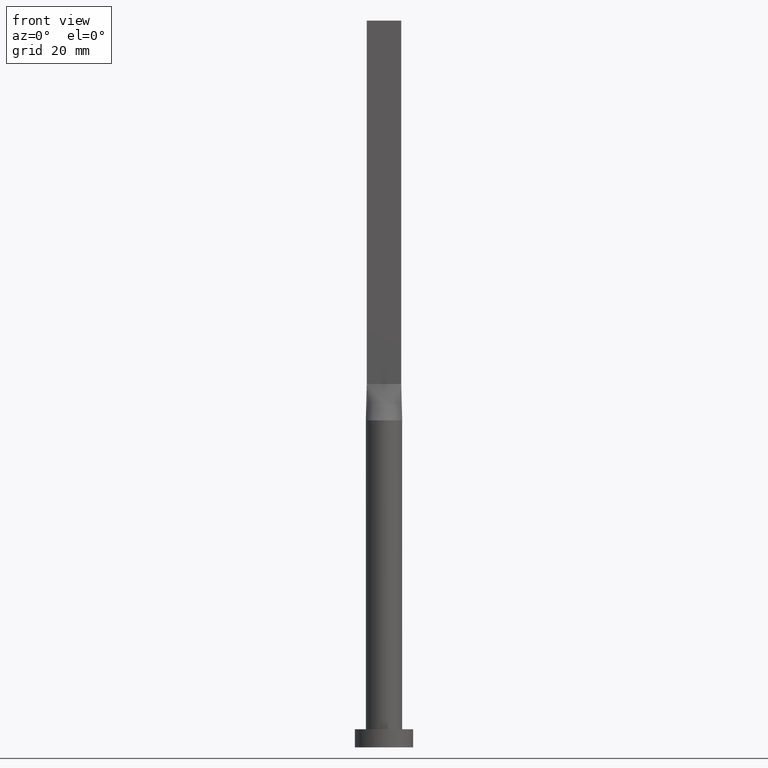
[diagram: clean part render]
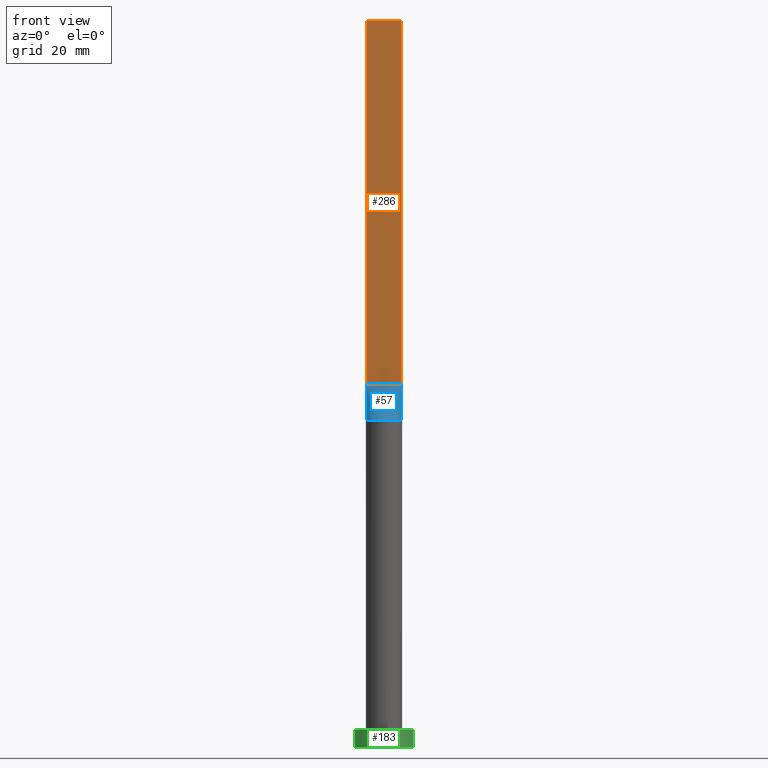
[diagram: same view with three faces highlighted in distinct colors, each labeled with its STEP entity id]
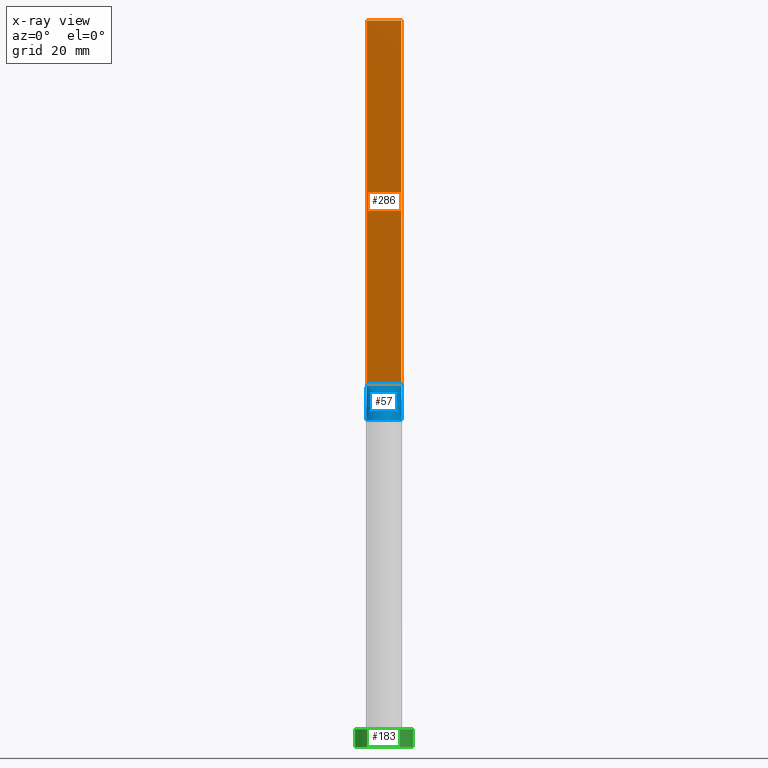
[diagram: x-ray of the same camera — body ghosted, the three highlighted faces saturated]
A machine part, front view with three faces highlighted in distinct colors.
The next image is the same camera in x-ray (body ghosted, the three faces saturated) — at least one of them is partly hidden behind the body in this view.
Their STEP definitions:

[orange] entity #286 — the highlighted planar face has unit normal (0, 1, -0).
#3 = VERTEX_POINT ( 'NONE', #250 ) ;
#19 = LINE ( 'NONE', #513, #455 ) ;
#32 = ORIENTED_EDGE ( 'NONE', *, *, #351, .F. ) ;
#39 = EDGE_CURVE ( 'NONE', #3, #116, #358, .T. ) ;
#49 = DIRECTION ( 'NONE',  ( -0.000000000000000000, -0.000000000000000000, -1.000000000000000000 ) ) ;
#91 = ORIENTED_EDGE ( 'NONE', *, *, #39, .T. ) ;
#100 = CARTESIAN_POINT ( 'NONE',  ( -4.750000000000000000, -0.9999999999999991118, 200.0000000000000000 ) ) ;
#110 = DIRECTION ( 'NONE',  ( -0.000000000000000000, -0.000000000000000000, -1.000000000000000000 ) ) ;
#116 = VERTEX_POINT ( 'NONE', #217 ) ;
#136 = VERTEX_POINT ( 'NONE', #167 ) ;
#156 = DIRECTION ( 'NONE',  ( 1.000000000000000000, -6.847592668329501559E-17, 0.000000000000000000 ) ) ;
#166 = FACE_OUTER_BOUND ( 'NONE', #294, .T. ) ;
#167 = CARTESIAN_POINT ( 'NONE',  ( -4.750000000000000000, -0.9999999999999991118, 200.0000000000000000 ) ) ;
#169 = CARTESIAN_POINT ( 'NONE',  ( -4.750000000000000000, -0.9999999999999991118, 200.0000000000000000 ) ) ;
#179 = ORIENTED_EDGE ( 'NONE', *, *, #505, .T. ) ;
#217 = CARTESIAN_POINT ( 'NONE',  ( 4.750000000000000000, -0.9999999999999997780, 100.0000000000000000 ) ) ;
#221 = VECTOR ( 'NONE', #110, 1000.000000000000000 ) ;
#250 = CARTESIAN_POINT ( 'NONE',  ( -4.750000000000000000, -0.9999999999999991118, 100.0000000000000000 ) ) ;
#260 = DIRECTION ( 'NONE',  ( -1.000000000000000000, 6.847592668329501559E-17, 0.000000000000000000 ) ) ;
#272 = VECTOR ( 'NONE', #311, 1000.000000000000000 ) ;
#286 = ADVANCED_FACE ( 'NONE', ( #166 ), #589, .F. ) ;
#294 = EDGE_LOOP ( 'NONE', ( #91, #32, #385, #179 ) ) ;
#309 = DIRECTION ( 'NONE',  ( 6.847592668329501559E-17, 1.000000000000000000, -0.000000000000000000 ) ) ;
#311 = DIRECTION ( 'NONE',  ( 1.000000000000000000, -6.847592668329501559E-17, 0.000000000000000000 ) ) ;
#341 = CARTESIAN_POINT ( 'NONE',  ( -4.750000000000000000, -0.9999999999999991118, 200.0000000000000000 ) ) ;
#351 = EDGE_CURVE ( 'NONE', #597, #116, #19, .T. ) ;
#358 = LINE ( 'NONE', #547, #272 ) ;
#360 = CARTESIAN_POINT ( 'NONE',  ( 4.750000000000000000, -0.9999999999999997780, 200.0000000000000000 ) ) ;
#361 = AXIS2_PLACEMENT_3D ( 'NONE', #169, #309, #260 ) ;
#385 = ORIENTED_EDGE ( 'NONE', *, *, #481, .F. ) ;
#443 = LINE ( 'NONE', #341, #221 ) ;
#445 = VECTOR ( 'NONE', #156, 1000.000000000000000 ) ;
#455 = VECTOR ( 'NONE', #49, 1000.000000000000000 ) ;
#481 = EDGE_CURVE ( 'NONE', #136, #597, #490, .T. ) ;
#490 = LINE ( 'NONE', #100, #445 ) ;
#505 = EDGE_CURVE ( 'NONE', #136, #3, #443, .T. ) ;
#513 = CARTESIAN_POINT ( 'NONE',  ( 4.750000000000000000, -0.9999999999999997780, 200.0000000000000000 ) ) ;
#547 = CARTESIAN_POINT ( 'NONE',  ( -4.750000000000000000, -0.9999999999999991118, 100.0000000000000000 ) ) ;
#589 = PLANE ( 'NONE',  #361 ) ;
#597 = VERTEX_POINT ( 'NONE', #360 ) ;

[blue] entity #57 — the highlighted face is a freeform B-spline surface patch.
#1 = CARTESIAN_POINT ( 'NONE',  ( -0.9895833333333223791, -0.9999999999999991118, 100.0000000000000000 ) ) ;
#3 = VERTEX_POINT ( 'NONE', #250 ) ;
#4 = AXIS2_PLACEMENT_3D ( 'NONE', #117, #489, #70 ) ;
#12 = CARTESIAN_POINT ( 'NONE',  ( 0.7916666666666767327, -0.9999999999999995559, 100.0000000000000000 ) ) ;
#35 = ORIENTED_EDGE ( 'NONE', *, *, #39, .F. ) ;
#39 = EDGE_CURVE ( 'NONE', #3, #116, #358, .T. ) ;
#44 = CARTESIAN_POINT ( 'NONE',  ( -0.6760916456145810161, -4.965368365385190330, 90.00000000000002842 ) ) ;
#48 = CARTESIAN_POINT ( 'NONE',  ( -3.900093280396790263, -3.182195704254722646, 90.00000000000002842 ) ) ;
#51 = CARTESIAN_POINT ( 'NONE',  ( -0.3958333333333227677, -0.9999999999999991118, 100.0000000000000000 ) ) ;
#53 = CARTESIAN_POINT ( 'NONE',  ( -1.979166666666656749, -0.9999999999999991118, 100.0000000000000000 ) ) ;
#57 = ADVANCED_FACE ( 'NONE', ( #566 ), #465, .T. ) ;
#62 = LINE ( 'NONE', #248, #242 ) ;
#70 = DIRECTION ( 'NONE',  ( 1.000000000000000000, 0.000000000000000000, 0.000000000000000000 ) ) ;
#85 = CARTESIAN_POINT ( 'NONE',  ( -4.750000000000000000, -0.9999999999999991118, 100.0000000000000000 ) ) ;
#89 = CARTESIAN_POINT ( 'NONE',  ( -4.214142381859629971, -2.735777372109855499, 90.00000000000005684 ) ) ;
#93 = CARTESIAN_POINT ( 'NONE',  ( -3.166666666666660301, -0.9999999999999991118, 100.0000000000000142 ) ) ;
#101 = CARTESIAN_POINT ( 'NONE',  ( 2.546422404201595491, -4.351724242187078318, 90.00000000000004263 ) ) ;
#109 = VECTOR ( 'NONE', #402, 999.9999999999998863 ) ;
#116 = VERTEX_POINT ( 'NONE', #217 ) ;
#117 = CARTESIAN_POINT ( 'NONE',  ( 0.000000000000000000, 0.000000000000000000, 90.00000000000001421 ) ) ;
#119 = CARTESIAN_POINT ( 'NONE',  ( 0.3958333333333435289, -0.9999999999999993339, 100.0000000000000142 ) ) ;
#153 = CARTESIAN_POINT ( 'NONE',  ( 3.900093280396789819, -3.182195704254725754, 90.00000000000002842 ) ) ;
#160 = LINE ( 'NONE', #201, #109 ) ;
#182 = CARTESIAN_POINT ( 'NONE',  ( -0.1979166666666562768, -0.9999999999999993339, 100.0000000000000142 ) ) ;
#185 = ORIENTED_EDGE ( 'NONE', *, *, #215, .T. ) ;
#195 = CARTESIAN_POINT ( 'NONE',  ( 0.9895833333333431403, -0.9999999999999995559, 100.0000000000000142 ) ) ;
#201 = CARTESIAN_POINT ( 'NONE',  ( 4.821374462466871513, -1.015026202624605967, 95.00000000000000000 ) ) ;
#215 = EDGE_CURVE ( 'NONE', #466, #453, #276, .T. ) ;
#217 = CARTESIAN_POINT ( 'NONE',  ( 4.750000000000000000, -0.9999999999999997780, 100.0000000000000000 ) ) ;
#226 = CARTESIAN_POINT ( 'NONE',  ( 0.3380808736611294329, -5.000000000000000000, 90.00000000000004263 ) ) ;
#228 = ORIENTED_EDGE ( 'NONE', *, *, #438, .T. ) ;
#229 = CARTESIAN_POINT ( 'NONE',  ( -4.667610010780609997, -1.859271532507959845, 90.00000000000004263 ) ) ;
#230 = CARTESIAN_POINT ( 'NONE',  ( 3.166666666666674068, -0.9999999999999995559, 100.0000000000000284 ) ) ;
#231 = CARTESIAN_POINT ( 'NONE',  ( -0.3380808736611334853, -5.000000000000000000, 90.00000000000004263 ) ) ;
#235 = CARTESIAN_POINT ( 'NONE',  ( -1.583333333333322823, -0.9999999999999991118, 100.0000000000000000 ) ) ;
#239 = CARTESIAN_POINT ( 'NONE',  ( 2.770833333333341475, -0.9999999999999995559, 100.0000000000000284 ) ) ;
#242 = VECTOR ( 'NONE', #337, 999.9999999999998863 ) ;
#248 = CARTESIAN_POINT ( 'NONE',  ( -4.821374462466872401, -1.015026202624603524, 95.00000000000000000 ) ) ;
#250 = CARTESIAN_POINT ( 'NONE',  ( -4.750000000000000000, -0.9999999999999991118, 100.0000000000000000 ) ) ;
#272 = VECTOR ( 'NONE', #311, 1000.000000000000000 ) ;
#276 = CIRCLE ( 'NONE', #4, 5.000000000000000000 ) ;
#278 = CARTESIAN_POINT ( 'NONE',  ( -4.808752461626938590, -1.429035605956546329, 90.00000000000004263 ) ) ;
#279 = EDGE_CURVE ( 'NONE', #453, #116, #160, .T. ) ;
#285 = CARTESIAN_POINT ( 'NONE',  ( 4.667610010780611773, -1.859271532507964286, 90.00000000000007105 ) ) ;
#287 = CARTESIAN_POINT ( 'NONE',  ( -0.7916666666666558605, -0.9999999999999991118, 100.0000000000000000 ) ) ;
#288 = CARTESIAN_POINT ( 'NONE',  ( -2.546422404201599488, -4.351724242187074765, 90.00000000000002842 ) ) ;
#291 = CARTESIAN_POINT ( 'NONE',  ( -3.958333333333330373, -0.9999999999999991118, 100.0000000000000142 ) ) ;
#293 = CARTESIAN_POINT ( 'NONE',  ( 1.979166666666675845, -0.9999999999999995559, 100.0000000000000284 ) ) ;
#303 = CARTESIAN_POINT ( 'NONE',  ( 1.583333333333342585, -0.9999999999999995559, 100.0000000000000142 ) ) ;
#311 = DIRECTION ( 'NONE',  ( 1.000000000000000000, -6.847592668329501559E-17, 0.000000000000000000 ) ) ;
#325 = CARTESIAN_POINT ( 'NONE',  ( 4.892748924933744803, -1.030052405249212155, 90.00000000000001421 ) ) ;
#327 = CARTESIAN_POINT ( 'NONE',  ( -4.892748924933745691, -1.030052405249207936, 90.00000000000001421 ) ) ;
#331 = CARTESIAN_POINT ( 'NONE',  ( -2.770833333333325488, -0.9999999999999991118, 100.0000000000000000 ) ) ;
#337 = DIRECTION ( 'NONE',  ( -0.01427337385845013802, -0.003004920812305207807, -0.9998936149659166661 ) ) ;
#338 = CARTESIAN_POINT ( 'NONE',  ( 1.649264041307592965, -4.731318088779740805, 90.00000000000001421 ) ) ;
#349 = CARTESIAN_POINT ( 'NONE',  ( 4.214142381859629971, -2.735777372109856831, 90.00000000000000000 ) ) ;
#358 = LINE ( 'NONE', #547, #272 ) ;
#402 = DIRECTION ( 'NONE',  ( -0.01427337385845005129, 0.003004920812305554318, 0.9998936149659166661 ) ) ;
#414 = CARTESIAN_POINT ( 'NONE',  ( 3.958333333333337922, -0.9999999999999995559, 100.0000000000000284 ) ) ;
#423 = CARTESIAN_POINT ( 'NONE',  ( 4.808752461626937702, -1.429035605956550103, 90.00000000000002842 ) ) ;
#426 = CARTESIAN_POINT ( 'NONE',  ( -1.649264041307596962, -4.731318088779738140, 90.00000000000004263 ) ) ;
#436 = CARTESIAN_POINT ( 'NONE',  ( -4.892752739180945554, -1.030053203145257168, 90.00000000000001421 ) ) ;
#437 = CARTESIAN_POINT ( 'NONE',  ( 0.1979166666666768715, -0.9999999999999993339, 100.0000000000000142 ) ) ;
#438 = EDGE_CURVE ( 'NONE', #3, #466, #62, .T. ) ;
#453 = VERTEX_POINT ( 'NONE', #530 ) ;
#465 = B_SPLINE_SURFACE_WITH_KNOTS ( 'NONE', 3, 1, ( 
 ( #327, #85 ),
 ( #278, #563 ),
 ( #229, #291 ),
 ( #89, #93 ),
 ( #48, #331 ),
 ( #519, #53 ),
 ( #288, #235 ),
 ( #426, #1 ),
 ( #559, #287 ),
 ( #44, #51 ),
 ( #231, #182 ),
 ( #226, #437 ),
 ( #524, #119 ),
 ( #483, #12 ),
 ( #338, #195 ),
 ( #101, #303 ),
 ( #575, #293 ),
 ( #153, #239 ),
 ( #349, #230 ),
 ( #285, #414 ),
 ( #423, #600 ),
 ( #325, #467 ) ),
 .UNSPECIFIED., .F., .F., .F.,
 ( 4, 2, 2, 2, 2, 2, 2, 2, 2, 2, 4 ),
 ( 2, 2 ),
 ( 0.000000000000000000, 0.1250000000000000278, 0.2500000000000000555, 0.3750000000000001110, 0.4375000000000000555, 0.5000000000000000000, 0.5625000000000000000, 0.6250000000000000000, 0.7500000000000000000, 0.8750000000000001110, 1.000000000000000000 ),
 ( 0.000000000000000000, 1.000000000000000000 ),
 .UNSPECIFIED. ) ;
#466 = VERTEX_POINT ( 'NONE', #436 ) ;
#467 = CARTESIAN_POINT ( 'NONE',  ( 4.750000000000000000, -0.9999999999999997780, 100.0000000000000000 ) ) ;
#483 = CARTESIAN_POINT ( 'NONE',  ( 1.331739278681917771, -4.830988864699812702, 90.00000000000000000 ) ) ;
#485 = ORIENTED_EDGE ( 'NONE', *, *, #279, .T. ) ;
#489 = DIRECTION ( 'NONE',  ( 0.000000000000000000, 0.000000000000000000, 1.000000000000000000 ) ) ;
#519 = CARTESIAN_POINT ( 'NONE',  ( -3.067114325249250317, -3.991228734590923199, 90.00000000000002842 ) ) ;
#524 = CARTESIAN_POINT ( 'NONE',  ( 0.6760916456145764641, -4.965368365385190330, 90.00000000000002842 ) ) ;
#530 = CARTESIAN_POINT ( 'NONE',  ( 4.892747712986307285, -1.030052143680505683, 90.00000000000001421 ) ) ;
#540 = EDGE_LOOP ( 'NONE', ( #185, #485, #35, #228 ) ) ;
#547 = CARTESIAN_POINT ( 'NONE',  ( -4.750000000000000000, -0.9999999999999991118, 100.0000000000000000 ) ) ;
#559 = CARTESIAN_POINT ( 'NONE',  ( -1.331739278681922656, -4.830988864699811813, 90.00000000000001421 ) ) ;
#563 = CARTESIAN_POINT ( 'NONE',  ( -4.354166666666665186, -0.9999999999999991118, 100.0000000000000142 ) ) ;
#566 = FACE_OUTER_BOUND ( 'NONE', #540, .T. ) ;
#575 = CARTESIAN_POINT ( 'NONE',  ( 3.067114325249245876, -3.991228734590925864, 90.00000000000002842 ) ) ;
#600 = CARTESIAN_POINT ( 'NONE',  ( 4.354166666666669627, -0.9999999999999995559, 100.0000000000000142 ) ) ;

[green] entity #183 — the highlighted cylindrical surface (edge-blend (fillet) strip) has radius 8 mm, axis along (-0, -0, -1).
#17 = EDGE_CURVE ( 'NONE', #411, #415, #75, .T. ) ;
#67 = EDGE_CURVE ( 'NONE', #415, #131, #371, .T. ) ;
#69 = DIRECTION ( 'NONE',  ( 1.000000000000000000, 0.000000000000000000, 0.000000000000000000 ) ) ;
#75 = CIRCLE ( 'NONE', #140, 8.000000000000000000 ) ;
#83 = CARTESIAN_POINT ( 'NONE',  ( 0.000000000000000000, 0.000000000000000000, 0.000000000000000000 ) ) ;
#121 = ORIENTED_EDGE ( 'NONE', *, *, #173, .T. ) ;
#122 = DIRECTION ( 'NONE',  ( 0.000000000000000000, 0.000000000000000000, 1.000000000000000000 ) ) ;
#131 = VERTEX_POINT ( 'NONE', #227 ) ;
#140 = AXIS2_PLACEMENT_3D ( 'NONE', #197, #392, #69 ) ;
#161 = CYLINDRICAL_SURFACE ( 'NONE', #210, 8.000000000000000000 ) ;
#173 = EDGE_CURVE ( 'NONE', #203, #131, #251, .T. ) ;
#183 = ADVANCED_FACE ( 'NONE', ( #582 ), #161, .T. ) ;
#197 = CARTESIAN_POINT ( 'NONE',  ( 0.000000000000000000, 0.000000000000000000, 5.000000000000000000 ) ) ;
#203 = VERTEX_POINT ( 'NONE', #204 ) ;
#204 = CARTESIAN_POINT ( 'NONE',  ( -8.000000000000000000, 0.000000000000000000, 0.000000000000000000 ) ) ;
#210 = AXIS2_PLACEMENT_3D ( 'NONE', #267, #495, #310 ) ;
#212 = DIRECTION ( 'NONE',  ( 1.000000000000000000, 0.000000000000000000, 0.000000000000000000 ) ) ;
#214 = LINE ( 'NONE', #549, #544 ) ;
#227 = CARTESIAN_POINT ( 'NONE',  ( 8.000000000000000000, 9.797174393178825657E-16, 0.000000000000000000 ) ) ;
#251 = CIRCLE ( 'NONE', #475, 8.000000000000000000 ) ;
#267 = CARTESIAN_POINT ( 'NONE',  ( 0.000000000000000000, 0.000000000000000000, 5.000000000000000000 ) ) ;
#310 = DIRECTION ( 'NONE',  ( -1.000000000000000000, 0.000000000000000000, 0.000000000000000000 ) ) ;
#340 = ORIENTED_EDGE ( 'NONE', *, *, #67, .F. ) ;
#352 = CARTESIAN_POINT ( 'NONE',  ( -8.000000000000000000, 0.000000000000000000, 5.000000000000000000 ) ) ;
#371 = LINE ( 'NONE', #537, #487 ) ;
#392 = DIRECTION ( 'NONE',  ( 0.000000000000000000, 0.000000000000000000, 1.000000000000000000 ) ) ;
#400 = EDGE_LOOP ( 'NONE', ( #340, #521, #595, #121 ) ) ;
#411 = VERTEX_POINT ( 'NONE', #352 ) ;
#415 = VERTEX_POINT ( 'NONE', #447 ) ;
#447 = CARTESIAN_POINT ( 'NONE',  ( 8.000000000000000000, 9.797174393178825657E-16, 5.000000000000000000 ) ) ;
#475 = AXIS2_PLACEMENT_3D ( 'NONE', #83, #122, #212 ) ;
#477 = DIRECTION ( 'NONE',  ( -0.000000000000000000, -0.000000000000000000, -1.000000000000000000 ) ) ;
#487 = VECTOR ( 'NONE', #477, 1000.000000000000000 ) ;
#495 = DIRECTION ( 'NONE',  ( -0.000000000000000000, -0.000000000000000000, -1.000000000000000000 ) ) ;
#521 = ORIENTED_EDGE ( 'NONE', *, *, #17, .F. ) ;
#537 = CARTESIAN_POINT ( 'NONE',  ( 8.000000000000000000, 9.797174393178825657E-16, 5.000000000000000000 ) ) ;
#544 = VECTOR ( 'NONE', #555, 1000.000000000000000 ) ;
#549 = CARTESIAN_POINT ( 'NONE',  ( -8.000000000000000000, 0.000000000000000000, 5.000000000000000000 ) ) ;
#555 = DIRECTION ( 'NONE',  ( -0.000000000000000000, -0.000000000000000000, -1.000000000000000000 ) ) ;
#582 = FACE_OUTER_BOUND ( 'NONE', #400, .T. ) ;
#590 = EDGE_CURVE ( 'NONE', #411, #203, #214, .T. ) ;
#595 = ORIENTED_EDGE ( 'NONE', *, *, #590, .T. ) ;